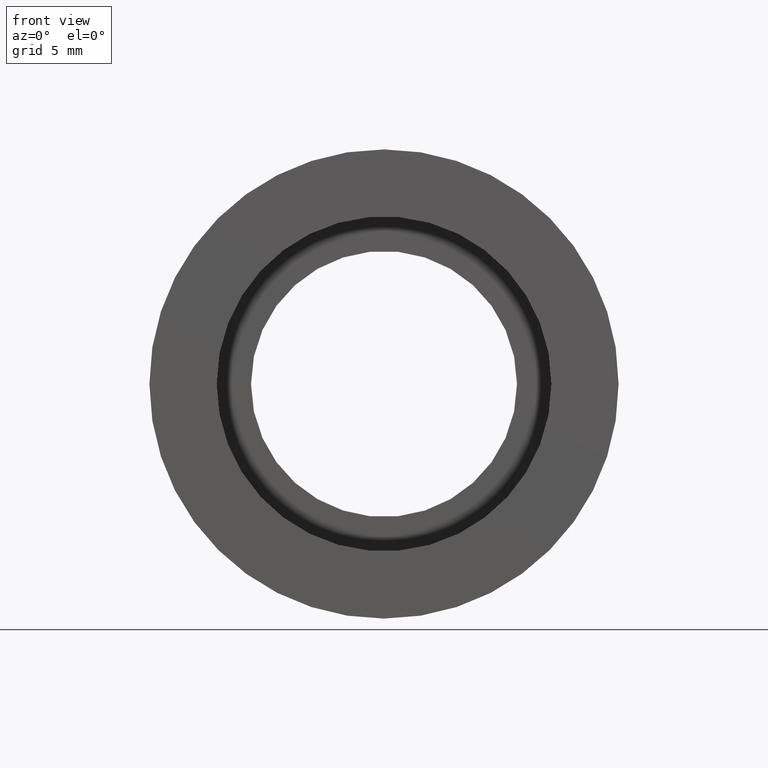
[diagram: clean part render]
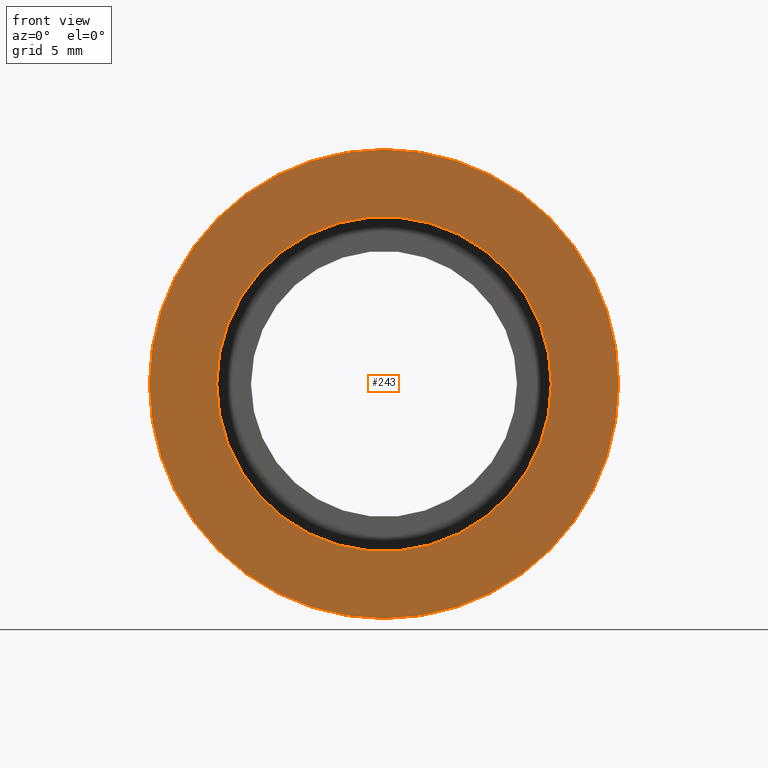
[diagram: same view with one face highlighted and labeled with its STEP entity id]
A machine part, front view. The second image highlights one B-rep face of the part: STEP entity #243.
In plain terms, the highlighted planar face has unit normal (-0, 1, 0).
Its self-contained STEP definition (entity closure, byte-faithful):
#31 = CARTESIAN_POINT ( 'NONE',  ( 9.525000000000005700, 1.166476076187852400E-015, 1.166476076187854400E-015 ) ) ;
#38 = CARTESIAN_POINT ( 'NONE',  ( 6.795000000000002600, 8.321475000206250400E-016, 8.321475000206265200E-016 ) ) ;
#47 = CARTESIAN_POINT ( 'NONE',  ( 2.067940818438636100E-015, 0.0000000000000000000, 0.0000000000000000000 ) ) ;
#51 = EDGE_LOOP ( 'NONE', ( #282, #171 ) ) ;
#66 = CIRCLE ( 'NONE', #148, 9.525000000000003900 ) ;
#69 = CARTESIAN_POINT ( 'NONE',  ( 2.067940818438636100E-015, 0.0000000000000000000, 0.0000000000000000000 ) ) ;
#73 = DIRECTION ( 'NONE',  ( -1.224646799147351000E-016, 1.000000000000000000, 0.0000000000000000000 ) ) ;
#79 = FACE_BOUND ( 'NONE', #241, .T. ) ;
#148 = AXIS2_PLACEMENT_3D ( 'NONE', #69, #394, #246 ) ;
#171 = ORIENTED_EDGE ( 'NONE', *, *, #353, .F. ) ;
#174 = CIRCLE ( 'NONE', #576, 6.794999999999999900 ) ;
#181 = AXIS2_PLACEMENT_3D ( 'NONE', #447, #496, #217 ) ;
#208 = ORIENTED_EDGE ( 'NONE', *, *, #612, .T. ) ;
#215 = CARTESIAN_POINT ( 'NONE',  ( -6.794999999999998200, -8.321475000206249500E-016, 0.0000000000000000000 ) ) ;
#216 = EDGE_CURVE ( 'NONE', #316, #377, #66, .T. ) ;
#217 = DIRECTION ( 'NONE',  ( -1.000000000000000000, -1.224646799147351200E-016, 0.0000000000000000000 ) ) ;
#238 = CIRCLE ( 'NONE', #181, 9.525000000000003900 ) ;
#241 = EDGE_LOOP ( 'NONE', ( #408, #208 ) ) ;
#243 = ADVANCED_FACE ( 'NONE', ( #281, #79 ), #543, .F. ) ;
#246 = DIRECTION ( 'NONE',  ( -1.000000000000000000, -1.224646799147351200E-016, 0.0000000000000000000 ) ) ;
#254 = CARTESIAN_POINT ( 'NONE',  ( 9.525000000000005700, -7.918900577448027900E-016, 0.0000000000000000000 ) ) ;
#274 = VERTEX_POINT ( 'NONE', #215 ) ;
#276 = DIRECTION ( 'NONE',  ( -1.000000000000000000, -1.224646799147351000E-016, 0.0000000000000000000 ) ) ;
#281 = FACE_OUTER_BOUND ( 'NONE', #51, .T. ) ;
#282 = ORIENTED_EDGE ( 'NONE', *, *, #216, .F. ) ;
#316 = VERTEX_POINT ( 'NONE', #601 ) ;
#353 = EDGE_CURVE ( 'NONE', #377, #316, #238, .T. ) ;
#355 = DIRECTION ( 'NONE',  ( -1.000000000000000000, -1.224646799147351000E-016, 0.0000000000000000000 ) ) ;
#374 = CIRCLE ( 'NONE', #542, 6.794999999999999900 ) ;
#375 = DIRECTION ( 'NONE',  ( -1.224646799147351000E-016, 1.000000000000000000, -0.0000000000000000000 ) ) ;
#377 = VERTEX_POINT ( 'NONE', #31 ) ;
#394 = DIRECTION ( 'NONE',  ( -1.224646799147351000E-016, 1.000000000000000000, -0.0000000000000000000 ) ) ;
#408 = ORIENTED_EDGE ( 'NONE', *, *, #580, .T. ) ;
#417 = AXIS2_PLACEMENT_3D ( 'NONE', #254, #73, #355 ) ;
#447 = CARTESIAN_POINT ( 'NONE',  ( 2.067940818438636100E-015, 0.0000000000000000000, 0.0000000000000000000 ) ) ;
#466 = DIRECTION ( 'NONE',  ( -1.000000000000000000, -1.224646799147351000E-016, 0.0000000000000000000 ) ) ;
#496 = DIRECTION ( 'NONE',  ( -1.224646799147351000E-016, 1.000000000000000000, -0.0000000000000000000 ) ) ;
#514 = CARTESIAN_POINT ( 'NONE',  ( 2.067940818438636100E-015, 0.0000000000000000000, 0.0000000000000000000 ) ) ;
#527 = VERTEX_POINT ( 'NONE', #38 ) ;
#542 = AXIS2_PLACEMENT_3D ( 'NONE', #47, #375, #276 ) ;
#543 = PLANE ( 'NONE',  #417 ) ;
#562 = DIRECTION ( 'NONE',  ( -1.224646799147351000E-016, 1.000000000000000000, -0.0000000000000000000 ) ) ;
#576 = AXIS2_PLACEMENT_3D ( 'NONE', #514, #562, #466 ) ;
#580 = EDGE_CURVE ( 'NONE', #274, #527, #374, .T. ) ;
#601 = CARTESIAN_POINT ( 'NONE',  ( -9.525000000000002100, -1.166476076187852400E-015, 0.0000000000000000000 ) ) ;
#612 = EDGE_CURVE ( 'NONE', #527, #274, #174, .T. ) ;